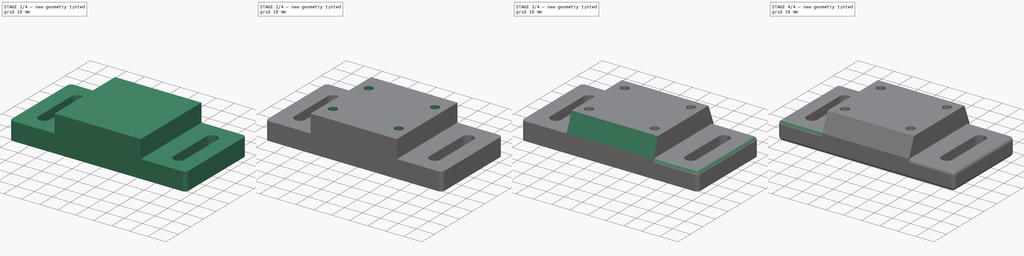
[diagram: build sequence overview — one tinted view per stage of 4, left to right]
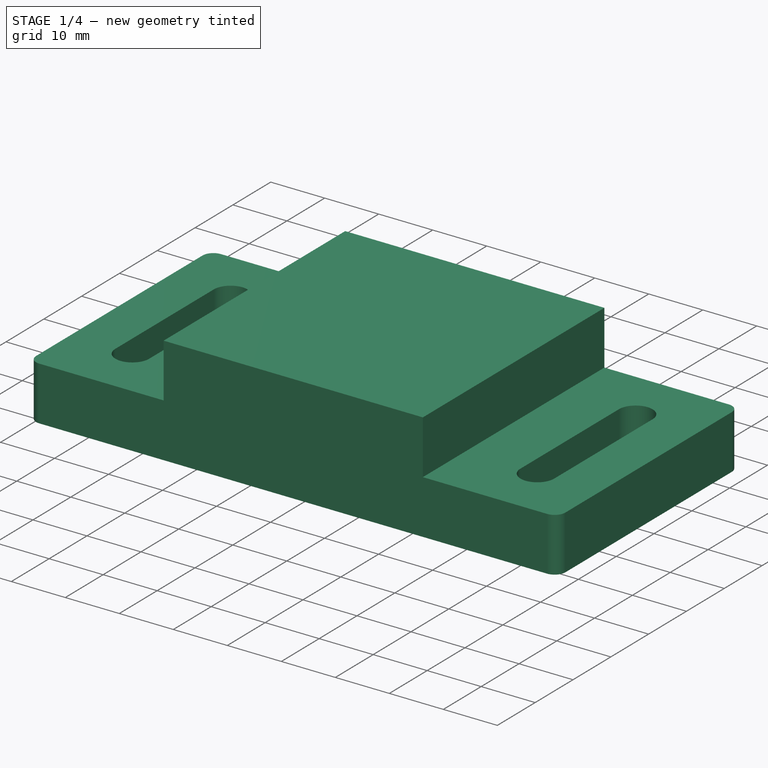
[diagram: stage 1 of 4 — iso view after this stage's code; geometry added in this stage tinted green]
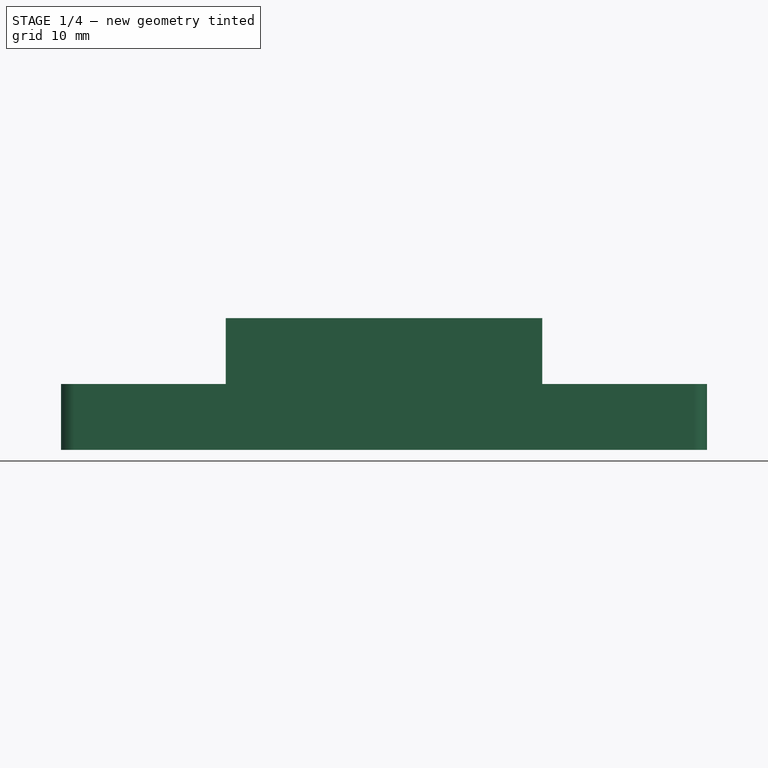
[diagram: stage 1 of 4 — front view after this stage's code; geometry added in this stage tinted green]
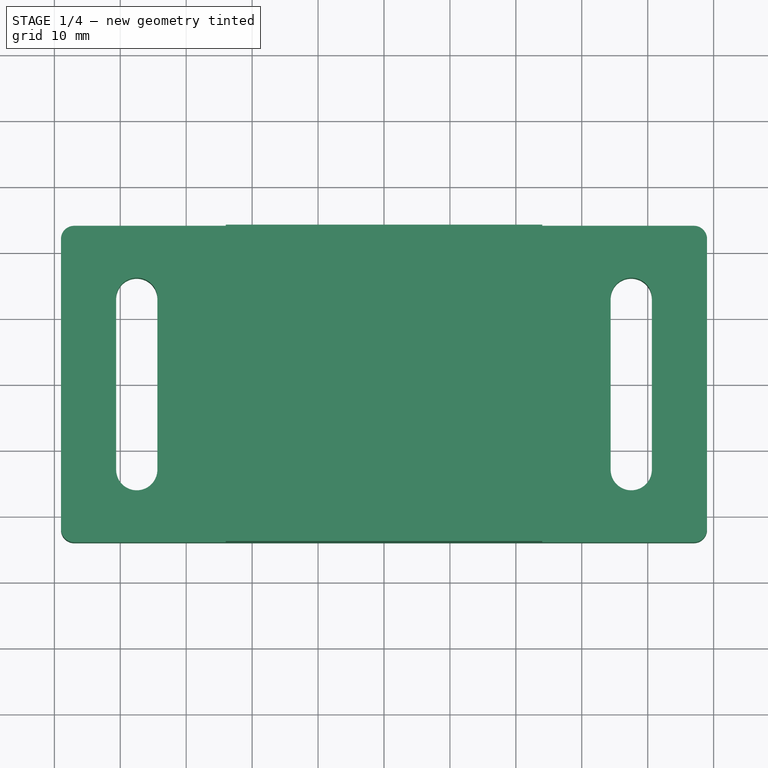
[diagram: stage 1 of 4 — top view after this stage's code; geometry added in this stage tinted green]
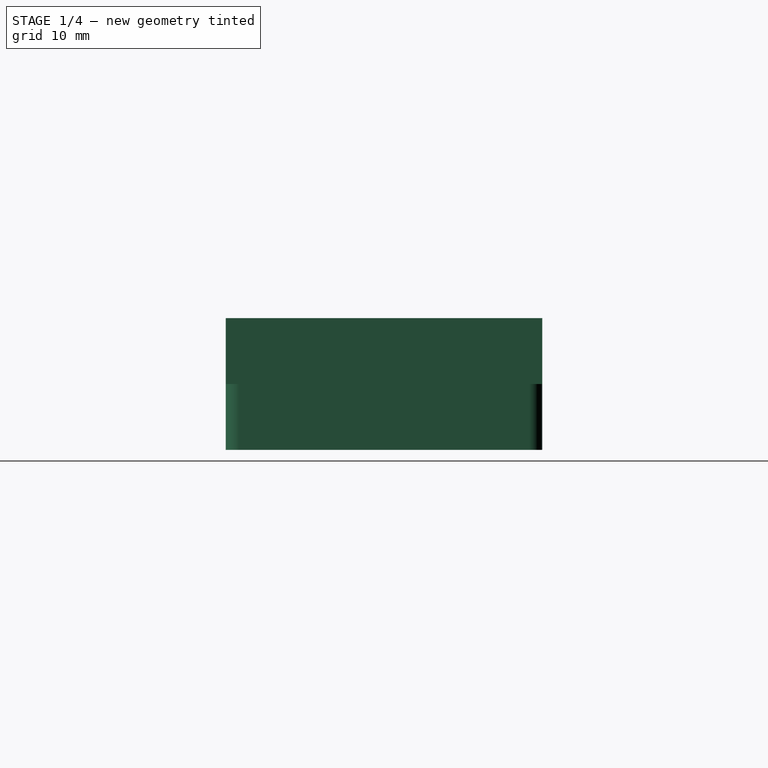
[diagram: stage 1 of 4 — right view after this stage's code; geometry added in this stage tinted green]
FCSTD DOCUMENT  (FreeCAD 0.20R29410 (Git))
Label: scannermount3
License: All rights reserved
LicenseURL: http://en.wikipedia.org/wiki/All_rights_reserved
objects: Sketcher::SketchObject×7, PartDesign::Pad×4, PartDesign::Fillet×3, PartDesign::Chamfer×2, Part::Part2DObjectPython×1, PartDesign::Hole×1, PartDesign::Body×1
note: 29 computed .brp shape members not serialized (recipe doc carries the construction recipe); baked Part::Feature solids carry a one-line shape summary decoded from their .brp

FEATURE [Sketcher::SketchObject] Sketch001  label="MasterSketch"
  FullyConstrained = true
  MapMode = 5
  Placement = pos=(0,0,0) rot=(1,0,0;3.14159rad)
  sketch-geometry (18):
    g0: Circle CenterX=-18.5 CenterY=14.085 CenterZ=0 NormalX=0 NormalY=0 NormalZ=1 AngleXU=0 Radius=1.75
    g1: Circle CenterX=18 CenterY=14.085 CenterZ=0 NormalX=0 NormalY=0 NormalZ=1 AngleXU=0 Radius=2.25
    g2: Circle CenterX=-18 CenterY=-13.585 CenterZ=0 NormalX=0 NormalY=0 NormalZ=1 AngleXU=0 Radius=2.25
    g3: Circle CenterX=18.5 CenterY=-14.085 CenterZ=0 NormalX=0 NormalY=0 NormalZ=1 AngleXU=0 Radius=1.75
    g4: LineSegment StartX=-22.5 StartY=18.085 StartZ=0 EndX=22.5 EndY=18.085 EndZ=0
    g5: LineSegment StartX=22.5 StartY=18.085 StartZ=0 EndX=22.5 EndY=-18.085 EndZ=0
    g6: LineSegment StartX=22.5 StartY=-18.085 StartZ=0 EndX=-22.5 EndY=-18.085 EndZ=0
    g7: LineSegment StartX=-22.5 StartY=-18.085 StartZ=0 EndX=-22.5 EndY=18.085 EndZ=0
    g8: LineSegment StartX=-49 StartY=24 StartZ=0 EndX=49 EndY=24 EndZ=0
    g9: LineSegment StartX=49 StartY=24 StartZ=0 EndX=49 EndY=-24 EndZ=0
    g10: LineSegment StartX=49 StartY=-24 StartZ=0 EndX=-49 EndY=-24 EndZ=0
    g11: LineSegment StartX=-49 StartY=-24 StartZ=0 EndX=-49 EndY=24 EndZ=0
    g12: LineSegment StartX=37.5 StartY=13 StartZ=0 EndX=37.5 EndY=-13 EndZ=0
    g13: LineSegment StartX=-37.5 StartY=13 StartZ=0 EndX=-37.5 EndY=-13 EndZ=0
    g14: LineSegment StartX=-24 StartY=24 StartZ=0 EndX=24 EndY=24 EndZ=0
    g15: LineSegment StartX=24 StartY=24 StartZ=0 EndX=24 EndY=-24 EndZ=0
    g16: LineSegment StartX=24 StartY=-24 StartZ=0 EndX=-24 EndY=-24 EndZ=0
    g17: LineSegment StartX=-24 StartY=-24 StartZ=0 EndX=-24 EndY=24 EndZ=0
  constraints (51):
    c: Diameter(g0) = 3.5
    c: Diameter(g1) = 4.5
    c: Diameter(g2) = 4.5
    c: Diameter(g3) = 3.5
    c: Coincident(g4,g5)
    c: Coincident(g5,g6)
    c: Coincident(g6,g7)
    c: Coincident(g7,g4)
    c: Horizontal(g4)
    c: Horizontal(g6)
    c: Vertical(g5)
    c: Vertical(g7)
    c: DistanceY(g7,g7) = 36.17
    c: DistanceX(g4,g4) = 45
    c: Symmetric(g4,g6,g-1)
    c: Distance(g2,g7) = 4.5
    c: Distance(g2,g6) = 4.5
    c: Distance(g0,g7) = 4
    c: Distance(g0,g4) = 4
    c: Distance(g3,g6) = 4
    c: Distance(g3,g5) = 4
    c: Distance(g1,g5) = 4.5
    c: Distance(g1,g4) = 4
    c: Coincident(g8,g9)
    c: Coincident(g9,g10)
    c: Coincident(g10,g11)
    c: Coincident(g11,g8)
    c: Horizontal(g8)
    c: Horizontal(g10)
    c: Vertical(g9)
    c: Vertical(g11)
    c: Distance(g10) = 98
    c: DistanceY(g9,g9) = 48
    c: Symmetric(g8,g10,g-1)
    c: Vertical(g13)
    c: DistanceY(g12,g12) = 26
    c: Symmetric(g12,g12,g-1)
    c: Equal(g12,g13)
    c: Symmetric(g13,g12,g-1)
    c: DistanceX(g13,g12) = 75
    c: Coincident(g14,g15)
    c: Coincident(g15,g16)
    c: Coincident(g16,g17)
    c: Coincident(g17,g14)
    c: Horizontal(g14)
    c: Horizontal(g16)
    c: Vertical(g15)
    c: Vertical(g17)
    c: Equal(g14,g15)
    c: Symmetric(g14,g16,g-1)
    c: Horizontal(g8,g14)
FEATURE [Part::Part2DObjectPython] Clone2D  label="MasterSketch (2D)"  # Draft 2D object (typed FeaturePython)
  Fuse = false
  Objects = -> [Sketch001]
  Placement = pos=(0,0,0) rot=(1,0,0;3.14159rad)
  Scale = (1,1,1)
FEATURE [Sketcher::SketchObject] Sketch
  ExternalGeometry = -> [Clone2D]
  FullyConstrained = true
  MapMode = 5
  Support = -> [XY_Plane]
  sketch-geometry (20):
    g0: LineSegment StartX=-47 StartY=24 StartZ=0 EndX=47 EndY=24 EndZ=0
    g1: LineSegment StartX=49 StartY=22 StartZ=0 EndX=49 EndY=-22 EndZ=0
    g2: LineSegment StartX=47 StartY=-24 StartZ=0 EndX=-47 EndY=-24 EndZ=0
    g3: LineSegment StartX=-49 StartY=-22 StartZ=0 EndX=-49 EndY=22 EndZ=0
    g4: ArcOfCircle CenterX=37.5 CenterY=13 CenterZ=0 NormalX=0 NormalY=0 NormalZ=1 AngleXU=0 Radius=3.125 StartAngle=4.26e-14 EndAngle=3.14159
    g5: ArcOfCircle CenterX=37.5 CenterY=-13 CenterZ=0 NormalX=0 NormalY=0 NormalZ=1 AngleXU=0 Radius=3.125 StartAngle=3.14159 EndAngle=6.28319
    g6: LineSegment StartX=34.375 StartY=13 StartZ=0 EndX=34.375 EndY=-13 EndZ=0
    g7: LineSegment StartX=40.625 StartY=-13 StartZ=0 EndX=40.625 EndY=13 EndZ=0
    g8: ArcOfCircle CenterX=-37.5 CenterY=13 CenterZ=0 NormalX=0 NormalY=0 NormalZ=1 AngleXU=0 Radius=3.125 StartAngle=3.7e-14 EndAngle=3.14159
    g9: ArcOfCircle CenterX=-37.5 CenterY=-13 CenterZ=0 NormalX=0 NormalY=0 NormalZ=1 AngleXU=0 Radius=3.125 StartAngle=3.14159 EndAngle=6.28319
    g10: LineSegment StartX=-40.625 StartY=13 StartZ=0 EndX=-40.625 EndY=-13 EndZ=0
    g11: LineSegment StartX=-34.375 StartY=-13 StartZ=0 EndX=-34.375 EndY=13 EndZ=0
    g12: ArcOfCircle CenterX=47 CenterY=22 CenterZ=0 NormalX=0 NormalY=0 NormalZ=1 AngleXU=0 Radius=2 StartAngle=1.5e-15 EndAngle=1.5708
    g13: GeomPoint X=49 Y=24 Z=0
    g14: ArcOfCircle CenterX=47 CenterY=-22 CenterZ=0 NormalX=0 NormalY=0 NormalZ=1 AngleXU=0 Radius=2 StartAngle=4.71239 EndAngle=6.28319
    g15: GeomPoint X=49 Y=-24 Z=0
    g16: ArcOfCircle CenterX=-47 CenterY=-22 CenterZ=0 NormalX=0 NormalY=0 NormalZ=1 AngleXU=0 Radius=2 StartAngle=3.14159 EndAngle=4.71239
    g17: GeomPoint X=-49 Y=-24 Z=0
    g18: ArcOfCircle CenterX=-47 CenterY=22 CenterZ=0 NormalX=0 NormalY=0 NormalZ=1 AngleXU=0 Radius=2 StartAngle=1.5708 EndAngle=3.14159
    g19: GeomPoint X=-49 Y=24 Z=0
  constraints (43):
    c: Horizontal(g0)
    c: Horizontal(g2)
    c: Vertical(g1)
    c: Vertical(g3)
    c: Symmetric(g19,g15,g-1)
    c: Tangent(g4,g6) = -1.5708
    c: Tangent(g6,g5) = -1.5708
    c: Tangent(g5,g7) = -1.5708
    c: Tangent(g7,g4) = -1.5708
    c: Equal(g4,g5)
    c: Vertical(g6)
    c: Tangent(g8,g10) = -1.5708
    c: Tangent(g10,g9) = -1.5708
    c: Tangent(g9,g11) = -1.5708
    c: Tangent(g11,g8) = -1.5708
    c: Equal(g8,g9)
    c: Diameter(g8) = 6.25
    c: Horizontal(g8,g4)
    c: Symmetric(g8,g9,g-1)
    c: Symmetric(g5,g9,g-2)
    c: Equal(g8,g4)
    c: Coincident(g8,g-6)
    c: Coincident(g19,g-4)
    c: PointOnObject(g13,g0)
    c: PointOnObject(g13,g1)
    c: Tangent(g0,g12) = 1.5708
    c: Tangent(g1,g12) = 1.5708
    c: PointOnObject(g15,g1)
    c: PointOnObject(g15,g2)
    c: Tangent(g1,g14) = 1.5708
    c: Tangent(g2,g14) = 1.5708
    c: PointOnObject(g17,g2)
    c: PointOnObject(g17,g3)
    c: Tangent(g2,g16) = 1.5708
    c: Tangent(g3,g16) = 1.5708
    c: PointOnObject(g19,g3)
    c: PointOnObject(g19,g0)
    c: Tangent(g3,g18) = 1.5708
    c: Tangent(g0,g18) = 1.5708
    c: Equal(g18,g12)
    c: Equal(g12,g14)
    c: Equal(g14,g16)
    c: Radius(g18) = 2
FEATURE [Sketcher::SketchObject] Sketch002
  ExternalGeometry = -> [Clone2D]
  FullyConstrained = true
  MapMode = 5
  Placement = pos=(0,0,10) rot=(0,0,1;0rad)
  sketch-geometry (4):
    g0: LineSegment StartX=-24 StartY=24 StartZ=0 EndX=24 EndY=24 EndZ=0
    g1: LineSegment StartX=24 StartY=24 StartZ=0 EndX=24 EndY=-24 EndZ=0
    g2: LineSegment StartX=24 StartY=-24 StartZ=0 EndX=-24 EndY=-24 EndZ=0
    g3: LineSegment StartX=-24 StartY=-24 StartZ=0 EndX=-24 EndY=24 EndZ=0
  constraints (10):
    c: Coincident(g0,g1)
    c: Coincident(g1,g2)
    c: Coincident(g2,g3)
    c: Coincident(g3,g0)
    c: Horizontal(g0)
    c: Horizontal(g2)
    c: Vertical(g1)
    c: Vertical(g3)
    c: Symmetric(g0,g2,g-1)
    c: Coincident(g0,g-5)
FEATURE [PartDesign::Pad] Pad  label="PlatePad"
  Direction = (0,0,1)
  Length = 10
  Length2 = 10
  Profile = -> Sketch
  ReferenceAxis = -> Sketch [N_Axis]
  Refine = true
  Type = 0
FEATURE [PartDesign::Pad] Pad001  label="RiserPad"
  BaseFeature = -> Pad
  Direction = (0,0,1)
  Length = 10
  Length2 = 10
  Profile = -> Sketch002
  ReferenceAxis = -> Sketch002 [N_Axis]
  Refine = true
  Type = 0
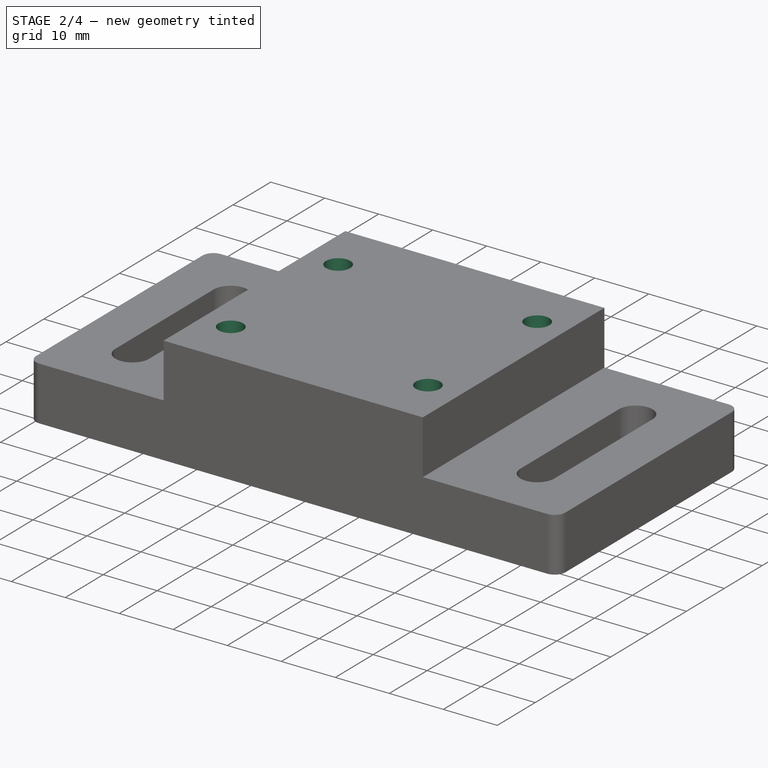
[diagram: stage 2 of 4 — iso view after this stage's code; geometry added in this stage tinted green]
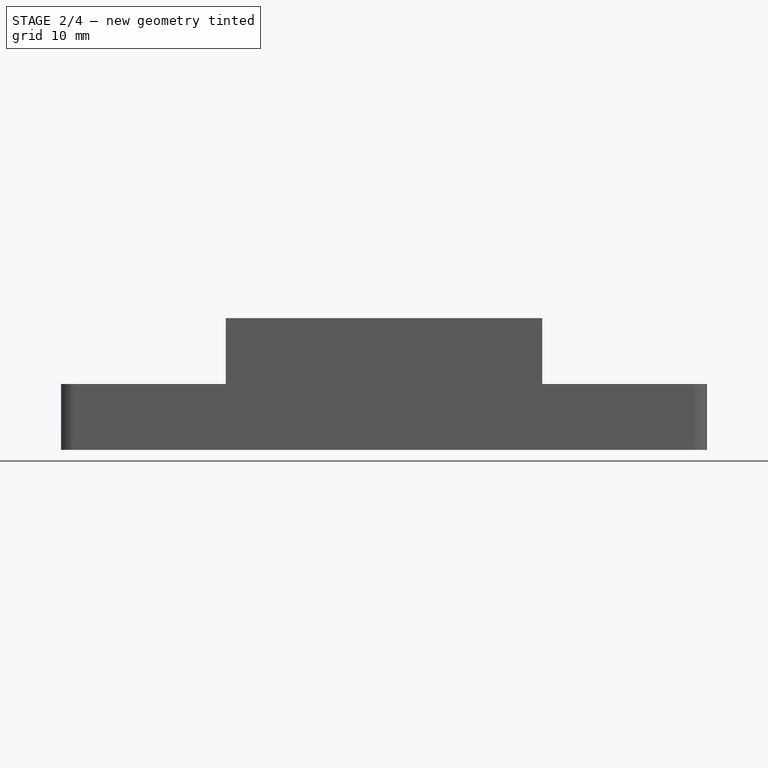
[diagram: stage 2 of 4 — front view after this stage's code; geometry added in this stage tinted green]
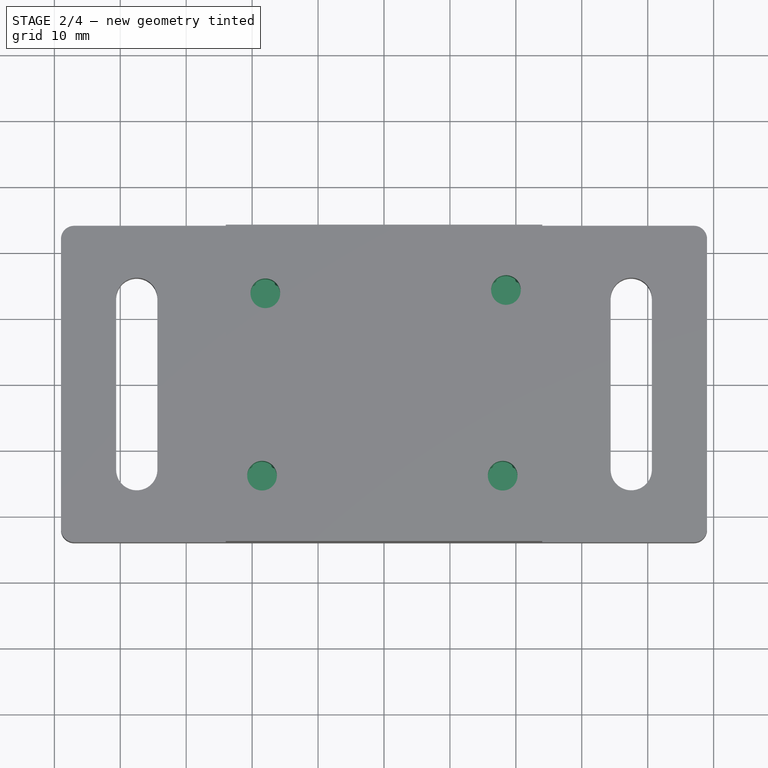
[diagram: stage 2 of 4 — top view after this stage's code; geometry added in this stage tinted green]
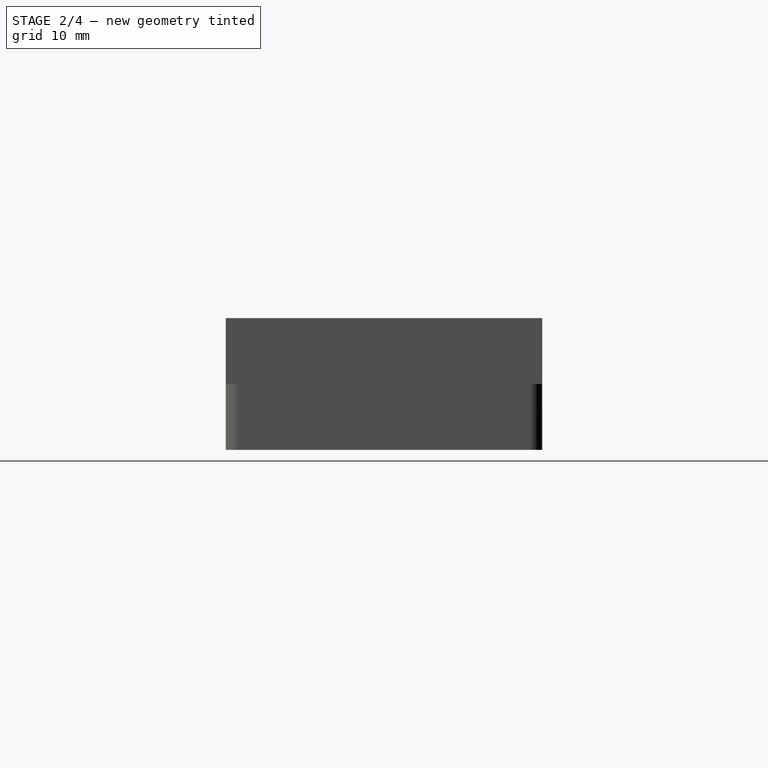
[diagram: stage 2 of 4 — right view after this stage's code; geometry added in this stage tinted green]
FEATURE [Sketcher::SketchObject] Sketch003  label="GalvoSketch"
  AttachmentOffset = pos=(0,0,20) rot=(0,0,1;0rad)
  ExternalGeometry = -> [Clone2D]
  FullyConstrained = true
  MapMode = 5
  Placement = pos=(0,0,20) rot=(0,0,1;0rad)
  Support = -> [XY_Plane]
  sketch-geometry (4):
    g0: LineSegment StartX=-22.5 StartY=18.085 StartZ=0 EndX=22.5 EndY=18.085 EndZ=0
    g1: LineSegment StartX=22.5 StartY=18.085 StartZ=0 EndX=22.5 EndY=-18.085 EndZ=0
    g2: LineSegment StartX=22.5 StartY=-18.085 StartZ=0 EndX=-22.5 EndY=-18.085 EndZ=0
    g3: LineSegment StartX=-22.5 StartY=-18.085 StartZ=0 EndX=-22.5 EndY=18.085 EndZ=0
  constraints (10):
    c: Coincident(g0,g1)
    c: Coincident(g1,g2)
    c: Coincident(g2,g3)
    c: Coincident(g3,g0)
    c: Horizontal(g0)
    c: Horizontal(g2)
    c: Vertical(g1)
    c: Vertical(g3)
    c: Symmetric(g0,g1,g-1)
    c: Coincident(g0,g-5)
FEATURE [Sketcher::SketchObject] Sketch004
  ExternalGeometry = -> [Clone2D]
  FullyConstrained = true
  MapMode = 5
  Placement = pos=(0,0,0) rot=(0,1,0;3.14159rad)
  Support = -> [XY_Plane]
  sketch-geometry (4):
    g0: Circle CenterX=-18.5 CenterY=14.085 CenterZ=0 NormalX=0 NormalY=0 NormalZ=1 AngleXU=0 Radius=2
    g1: Circle CenterX=18 CenterY=13.585 CenterZ=0 NormalX=0 NormalY=0 NormalZ=1 AngleXU=0 Radius=2
    g2: Circle CenterX=-18 CenterY=-14.085 CenterZ=0 NormalX=0 NormalY=0 NormalZ=1 AngleXU=0 Radius=2
    g3: Circle CenterX=18.5 CenterY=-14.085 CenterZ=0 NormalX=0 NormalY=0 NormalZ=1 AngleXU=0 Radius=2
  constraints (8):
    c: Coincident(g0,g-3)
    c: Coincident(g1,g-4)
    c: Coincident(g2,g-6)
    c: Coincident(g3,g-5)
    c: Diameter(g1) = 4
    c: Equal(g1,g0)
    c: Equal(g0,g2)
    c: Equal(g2,g3)
FEATURE [PartDesign::Hole] Hole
  BaseFeature = -> Pad001
  CustomThreadClearance = 0
  Depth = 224.102
  DepthType = 1
  Diameter = 4.5
  DrillForDepth = false
  DrillPoint = 1
  DrillPointAngle = 118
  HoleCutCountersinkAngle = 90
  HoleCutCustomValues = false
  HoleCutDepth = 12
  HoleCutDiameter = 7.5
  HoleCutType = 1
  ModelThread = false
  Profile = -> Sketch004
  Refine = true
  Tapered = false
  TaperedAngle = 90
  ThreadClass = 0
  ThreadDepth = 224.102
  ThreadDepthType = 0
  ThreadDirection = 0
  ThreadFit = 0
  ThreadSize = 11
  ThreadType = 1
  Threaded = false
  UseCustomThreadClearance = false
FEATURE [Sketcher::SketchObject] Sketch005
  ExternalGeometry = -> [Clone2D]
  FullyConstrained = true
  MapMode = 5
  Support = -> [XY_Plane]
  sketch-geometry (36):
    g0: LineSegment StartX=-19.92 StartY=15.505 StartZ=0 EndX=-19.92 EndY=11.665 EndZ=0
    g1: LineSegment StartX=-19.92 StartY=11.665 StartZ=0 EndX=-16.08 EndY=11.665 EndZ=0
    g2: LineSegment StartX=-16.08 StartY=11.665 StartZ=0 EndX=-16.08 EndY=15.505 EndZ=0
    g3: LineSegment StartX=-16.08 StartY=15.505 StartZ=0 EndX=-19.92 EndY=15.505 EndZ=0
    g4: GeomPoint X=-18 Y=13.585 Z=0
    g5: LineSegment StartX=20.42 StartY=16.005 StartZ=0 EndX=20.42 EndY=12.165 EndZ=0
    g6: LineSegment StartX=20.42 StartY=12.165 StartZ=0 EndX=16.58 EndY=12.165 EndZ=0
    g7: LineSegment StartX=16.58 StartY=12.165 StartZ=0 EndX=16.58 EndY=16.005 EndZ=0
    g8: LineSegment StartX=16.58 StartY=16.005 StartZ=0 EndX=20.42 EndY=16.005 EndZ=0
    g9: GeomPoint X=18.5 Y=14.085 Z=0
    g10: LineSegment StartX=-20.42 StartY=-12.165 StartZ=0 EndX=-20.42 EndY=-16.005 EndZ=0
    g11: LineSegment StartX=-20.42 StartY=-16.005 StartZ=0 EndX=-16.58 EndY=-16.005 EndZ=0
    g12: LineSegment StartX=-16.58 StartY=-16.005 StartZ=0 EndX=-16.58 EndY=-12.165 EndZ=0
    g13: LineSegment StartX=-16.58 StartY=-12.165 StartZ=0 EndX=-20.42 EndY=-12.165 EndZ=0
    g14: GeomPoint X=-18.5 Y=-14.085 Z=0
    g15: LineSegment StartX=19.92 StartY=-12.165 StartZ=0 EndX=19.92 EndY=-16.005 EndZ=0
    g16: LineSegment StartX=19.92 StartY=-16.005 StartZ=0 EndX=16.08 EndY=-16.005 EndZ=0
    g17: LineSegment StartX=16.08 StartY=-16.005 StartZ=0 EndX=16.08 EndY=-12.165 EndZ=0
    g18: LineSegment StartX=16.08 StartY=-12.165 StartZ=0 EndX=19.92 EndY=-12.165 EndZ=0
    g19: GeomPoint X=18 Y=-14.085 Z=0
    g20: Circle CenterX=-19.92 CenterY=15.505 CenterZ=0 NormalX=0 NormalY=0 NormalZ=1 AngleXU=0 Radius=0.5
    g21: Circle CenterX=-16.08 CenterY=15.505 CenterZ=0 NormalX=0 NormalY=0 NormalZ=1 AngleXU=0 Radius=0.5
    g22: Circle CenterX=-19.92 CenterY=11.665 CenterZ=0 NormalX=0 NormalY=0 NormalZ=1 AngleXU=0 Radius=0.5
    g23: Circle CenterX=-16.08 CenterY=11.665 CenterZ=0 NormalX=0 NormalY=0 NormalZ=1 AngleXU=0 Radius=0.5
    g24: Circle CenterX=16.58 CenterY=16.005 CenterZ=0 NormalX=0 NormalY=0 NormalZ=1 AngleXU=0 Radius=0.5
    g25: Circle CenterX=20.42 CenterY=16.005 CenterZ=0 NormalX=0 NormalY=0 NormalZ=1 AngleXU=0 Radius=0.5
    g26: Circle CenterX=16.58 CenterY=12.165 CenterZ=0 NormalX=0 NormalY=0 NormalZ=1 AngleXU=0 Radius=0.5
    g27: Circle CenterX=20.42 CenterY=12.165 CenterZ=0 NormalX=0 NormalY=0 NormalZ=1 AngleXU=0 Radius=0.5
    g28: Circle CenterX=-20.42 CenterY=-12.165 CenterZ=0 NormalX=0 NormalY=0 NormalZ=1 AngleXU=0 Radius=0.5
    g29: Circle CenterX=-16.58 CenterY=-12.165 CenterZ=0 NormalX=0 NormalY=0 NormalZ=1 AngleXU=0 Radius=0.5
    g30: Circle CenterX=-20.42 CenterY=-16.005 CenterZ=0 NormalX=0 NormalY=0 NormalZ=1 AngleXU=0 Radius=0.5
    g31: Circle CenterX=-16.58 CenterY=-16.005 CenterZ=0 NormalX=0 NormalY=0 NormalZ=1 AngleXU=0 Radius=0.5
    g32: Circle CenterX=16.08 CenterY=-12.165 CenterZ=0 NormalX=0 NormalY=0 NormalZ=1 AngleXU=0 Radius=0.5
    g33: Circle CenterX=19.92 CenterY=-12.165 CenterZ=0 NormalX=0 NormalY=0 NormalZ=1 AngleXU=0 Radius=0.5
    g34: Circle CenterX=16.08 CenterY=-16.005 CenterZ=0 NormalX=0 NormalY=0 NormalZ=1 AngleXU=0 Radius=0.5
    g35: Circle CenterX=19.92 CenterY=-16.005 CenterZ=0 NormalX=0 NormalY=0 NormalZ=1 AngleXU=0 Radius=0.5
  constraints (80):
    c: Coincident(g0,g1)
    c: Coincident(g1,g2)
    c: Coincident(g2,g3)
    c: Coincident(g3,g0)
    c: Horizontal(g1)
    c: Horizontal(g3)
    c: Vertical(g0)
    c: Vertical(g2)
    c: Symmetric(g1,g0,g4)
    c: Coincident(g4,g-3)
    c: Coincident(g5,g6)
    c: Coincident(g6,g7)
    c: Coincident(g7,g8)
    c: Coincident(g8,g5)
    c: Horizontal(g6)
    c: Horizontal(g8)
    c: Vertical(g5)
    c: Vertical(g7)
    c: Symmetric(g6,g5,g9)
    c: Coincident(g9,g-4)
    c: Coincident(g10,g11)
    c: Coincident(g11,g12)
    c: Coincident(g12,g13)
    c: Coincident(g13,g10)
    c: Horizontal(g11)
    c: Horizontal(g13)
    c: Vertical(g10)
    c: Vertical(g12)
    c: Symmetric(g11,g10,g14)
    c: Coincident(g14,g-5)
    c: Coincident(g15,g16)
    c: Coincident(g16,g17)
    c: Coincident(g17,g18)
    c: Coincident(g18,g15)
    c: Horizontal(g16)
    c: Horizontal(g18)
    c: Vertical(g15)
    c: Vertical(g17)
    c: Symmetric(g16,g15,g19)
    c: Coincident(g19,g-6)
    c: Equal(g2,g3)
    c: Equal(g3,g8)
    c: Equal(g8,g13)
    c: Equal(g13,g18)
    c: Equal(g2,g5)
    c: Equal(g5,g15)
    c: Equal(g15,g12)
    c: Coincident(g20,g0)
    c: Coincident(g21,g2)
    c: Coincident(g22,g0)
    c: Coincident(g23,g1)
    c: Coincident(g24,g7)
    c: Coincident(g25,g5)
    c: Coincident(g26,g6)
    c: Coincident(g27,g5)
    c: Coincident(g28,g10)
    c: Coincident(g29,g12)
    c: Coincident(g30,g10)
    c: Coincident(g31,g11)
    c: Coincident(g32,g17)
    c: Coincident(g33,g15)
    c: Coincident(g34,g16)
    c: Coincident(g35,g15)
    c: Equal(g20,g21)
    c: Equal(g21,g22)
    c: Equal(g22,g23)
    c: Equal(g23,g24)
    c: Equal(g24,g25)
    c: Equal(g25,g26)
    c: Equal(g26,g27)
    c: Equal(g27,g28)
    c: Equal(g28,g29)
    c: Equal(g29,g30)
    c: Equal(g30,g31)
    c: Equal(g31,g32)
    c: Equal(g32,g33)
    c: Equal(g33,g35)
    c: Equal(g35,g34)
    c: Diameter(g23) = 1
    c: DistanceX(g3,g3) = 3.84
FEATURE [PartDesign::Pad] Pad002  label="CBoreSupportPad"
  BaseFeature = -> Hole
  Direction = (0,0,1)
  Length = 12
  Length2 = 10
  Profile = -> Sketch005
  ReferenceAxis = -> Sketch005 [N_Axis]
  Refine = true
  Type = 0
FEATURE [Sketcher::SketchObject] Sketch006
  ExternalGeometry = -> [Clone2D]
  FullyConstrained = true
  MapMode = 5
  Support = -> [XY_Plane]
  sketch-geometry (4):
    g0: Circle CenterX=-18 CenterY=13.585 CenterZ=0 NormalX=0 NormalY=0 NormalZ=1 AngleXU=0 Radius=2.715
    g1: Circle CenterX=18.5 CenterY=14.085 CenterZ=0 NormalX=0 NormalY=0 NormalZ=1 AngleXU=0 Radius=2.715
    g2: Circle CenterX=-18.5 CenterY=-14.085 CenterZ=0 NormalX=0 NormalY=0 NormalZ=1 AngleXU=0 Radius=2.715
    g3: Circle CenterX=18 CenterY=-14.085 CenterZ=0 NormalX=0 NormalY=0 NormalZ=1 AngleXU=0 Radius=2.715
  constraints (8):
    c: Coincident(g0,g-3)
    c: Coincident(g1,g-4)
    c: Coincident(g2,g-5)
    c: Coincident(g3,g-6)
    c: Equal(g0,g1)
    c: Equal(g1,g2)
    c: Equal(g2,g3)
    c: Diameter(g0) = 5.43
FEATURE [PartDesign::Pad] Pad003
  BaseFeature = -> Pad002
  Direction = (0,0,1)
  Length = 1
  Length2 = 10
  Profile = -> Sketch006
  ReferenceAxis = -> Sketch006 [N_Axis]
  Refine = true
  Type = 0
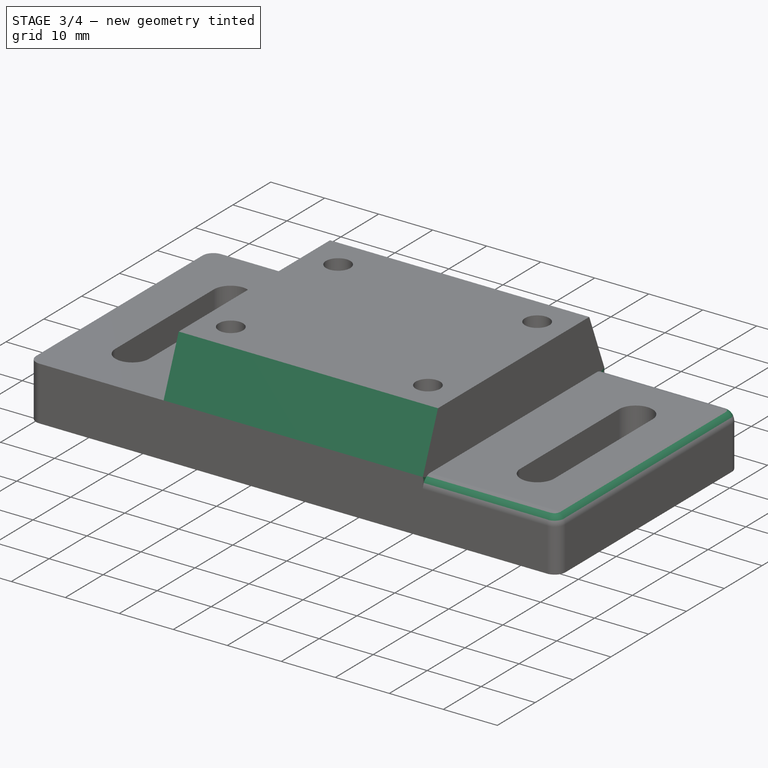
[diagram: stage 3 of 4 — iso view after this stage's code; geometry added in this stage tinted green]
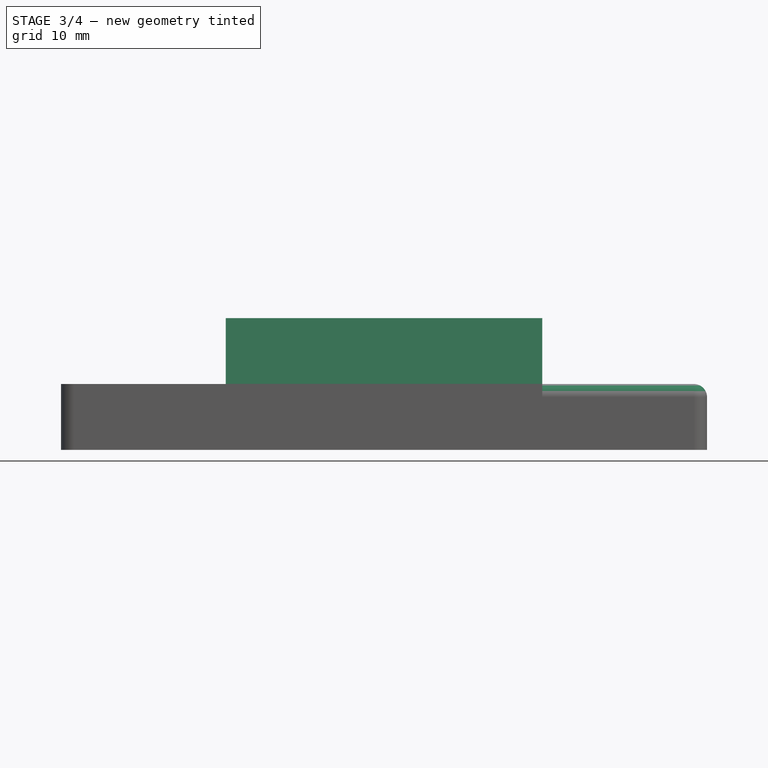
[diagram: stage 3 of 4 — front view after this stage's code; geometry added in this stage tinted green]
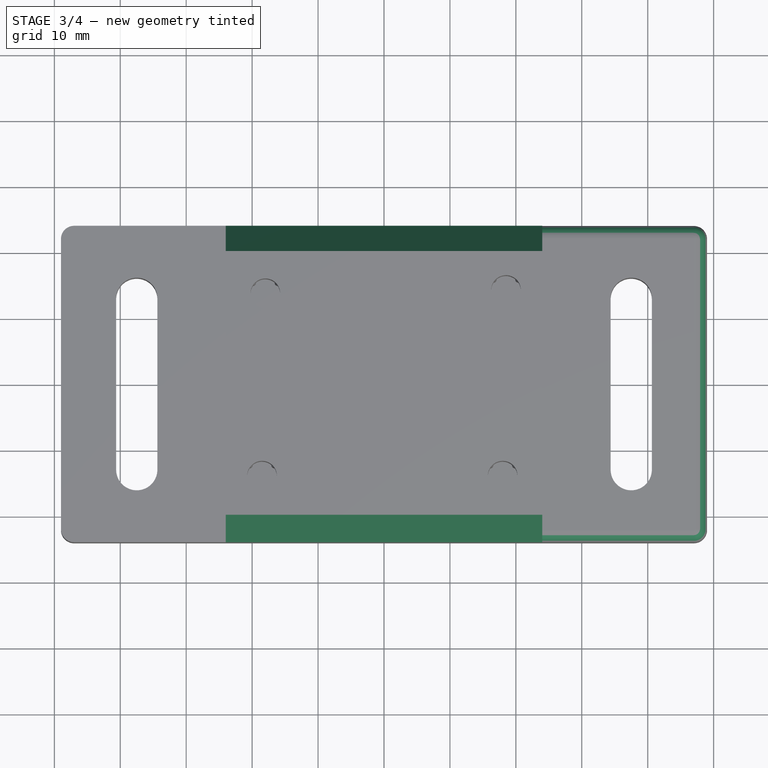
[diagram: stage 3 of 4 — top view after this stage's code; geometry added in this stage tinted green]
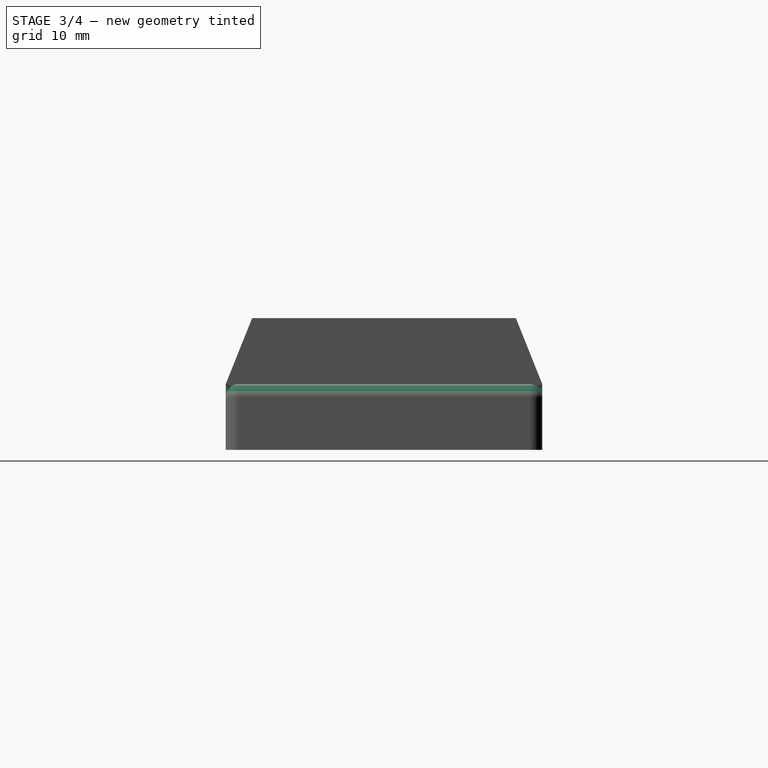
[diagram: stage 3 of 4 — right view after this stage's code; geometry added in this stage tinted green]
FEATURE [PartDesign::Chamfer] Chamfer
  Angle = 45
  Base = -> Pad003 [Edge53]
  BaseFeature = -> Pad003
  ChamferType = 1
  FlipDirection = false
  Refine = true
  Size = 4
  Size2 = 9.99
  SupportTransform = false
  UseAllEdges = false
FEATURE [PartDesign::Chamfer] Chamfer001
  Angle = 45
  Base = -> Chamfer [Edge23]
  BaseFeature = -> Chamfer
  ChamferType = 1
  FlipDirection = false
  Refine = true
  Size = 4
  Size2 = 9.99
  SupportTransform = false
  UseAllEdges = false
FEATURE [PartDesign::Fillet] Fillet
  Base = -> Chamfer001 [Edge25]
  BaseFeature = -> Chamfer001
  Radius = 2
  Refine = true
  SupportTransform = false
  UseAllEdges = false
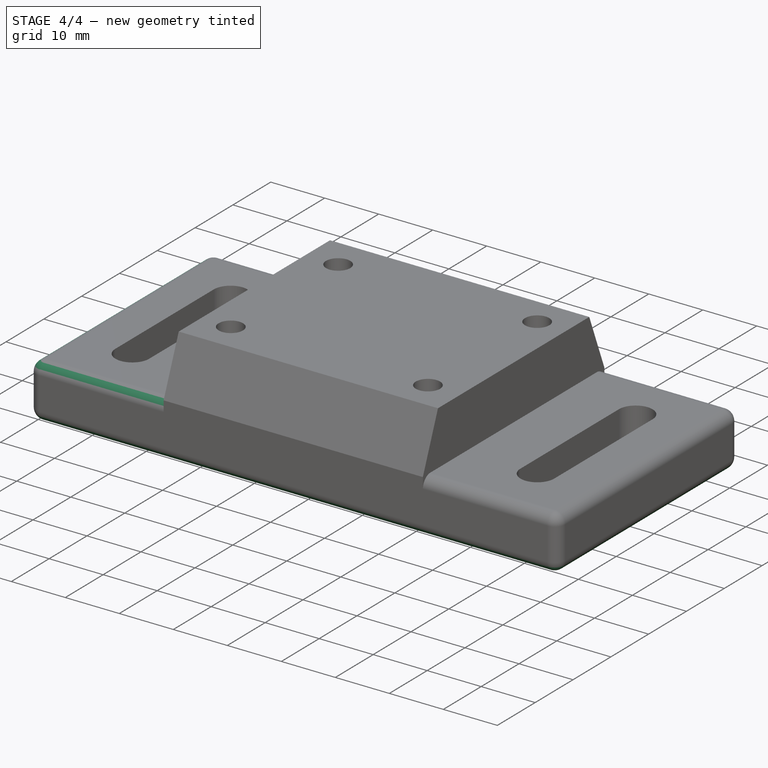
[diagram: stage 4 of 4 — iso view after this stage's code; geometry added in this stage tinted green]
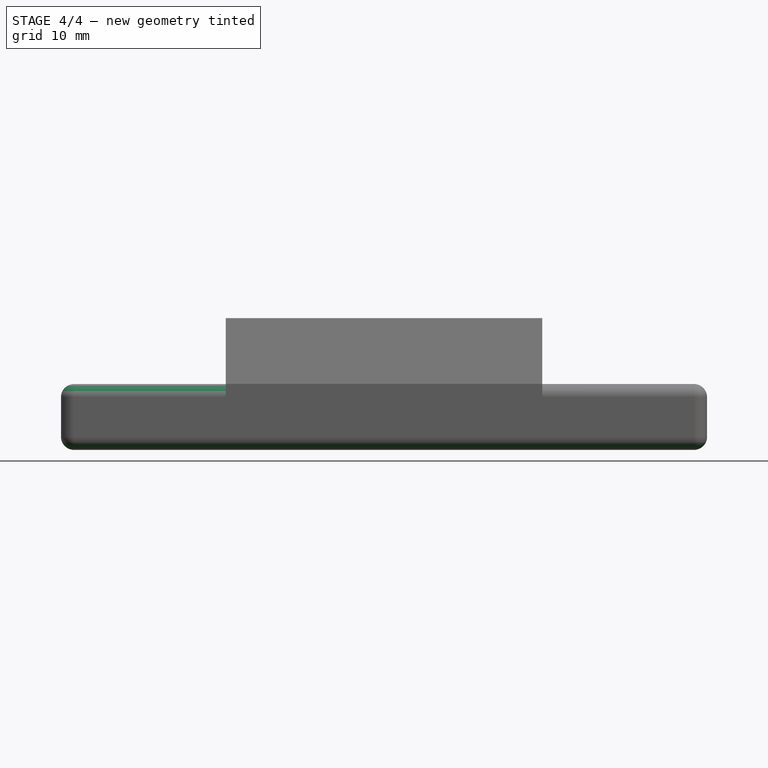
[diagram: stage 4 of 4 — front view after this stage's code; geometry added in this stage tinted green]
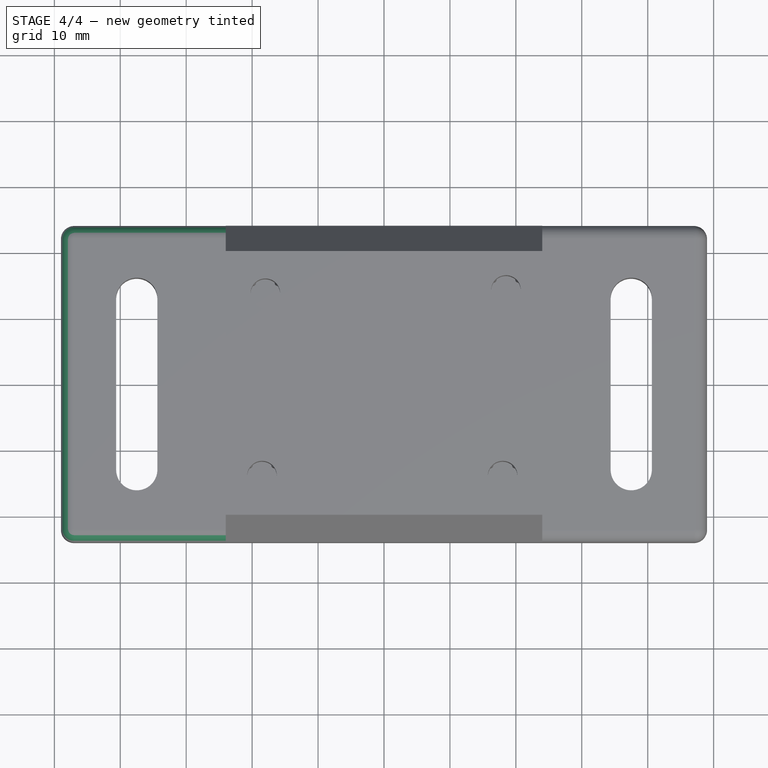
[diagram: stage 4 of 4 — top view after this stage's code; geometry added in this stage tinted green]
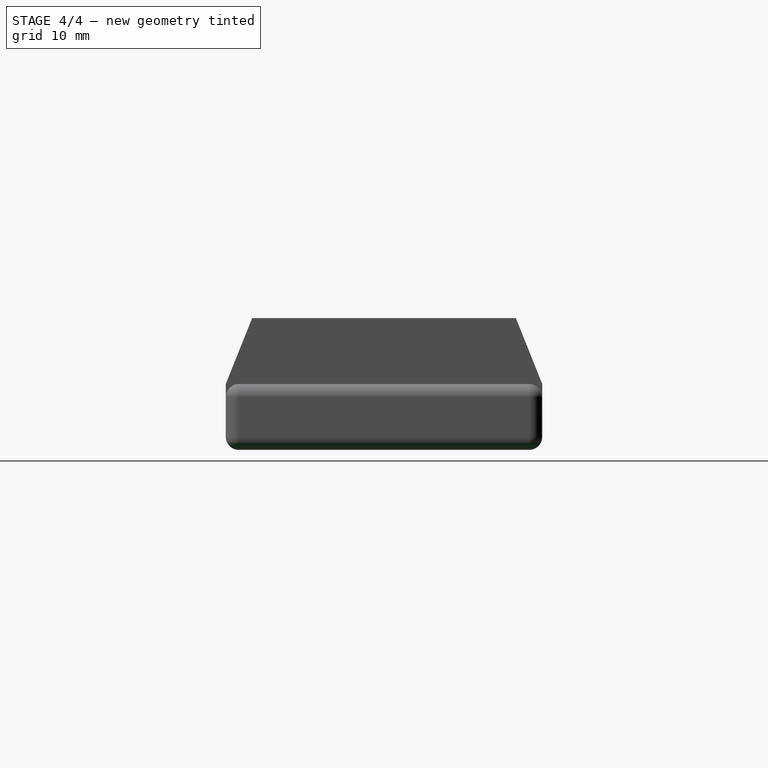
[diagram: stage 4 of 4 — right view after this stage's code; geometry added in this stage tinted green]
FEATURE [PartDesign::Fillet] Fillet001
  Base = -> Fillet [Edge44]
  BaseFeature = -> Fillet
  Radius = 2
  Refine = true
  SupportTransform = false
  UseAllEdges = false
FEATURE [PartDesign::Fillet] Fillet002
  Base = -> Fillet001 [Edge22]
  BaseFeature = -> Fillet001
  Radius = 2
  Refine = true
  SupportTransform = false
  UseAllEdges = false
FEATURE [PartDesign::Body] Body
  Group = -> [Sketch,Sketch001,Sketch002,Clone2D,Pad,Pad001,Sketch003,Sketch004,Hole,Sketch005,Pad002,Sketch006,Pad003,Chamfer,Chamfer001,Fillet,Fillet001,Fillet002]
  Origin = -> Origin
  Tip = -> Fillet002
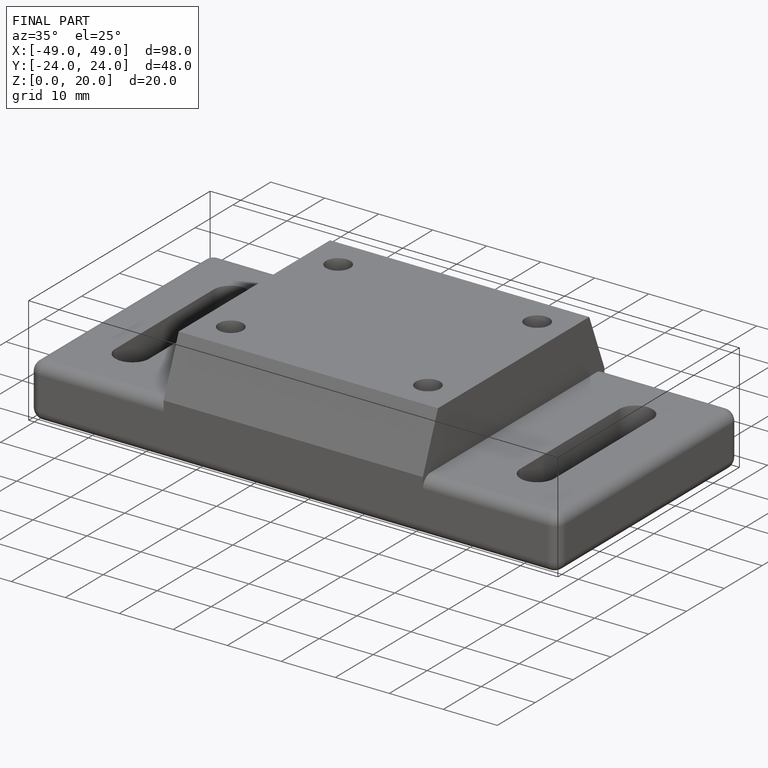
[diagram: finished part — iso view with bounding-box wireframe]
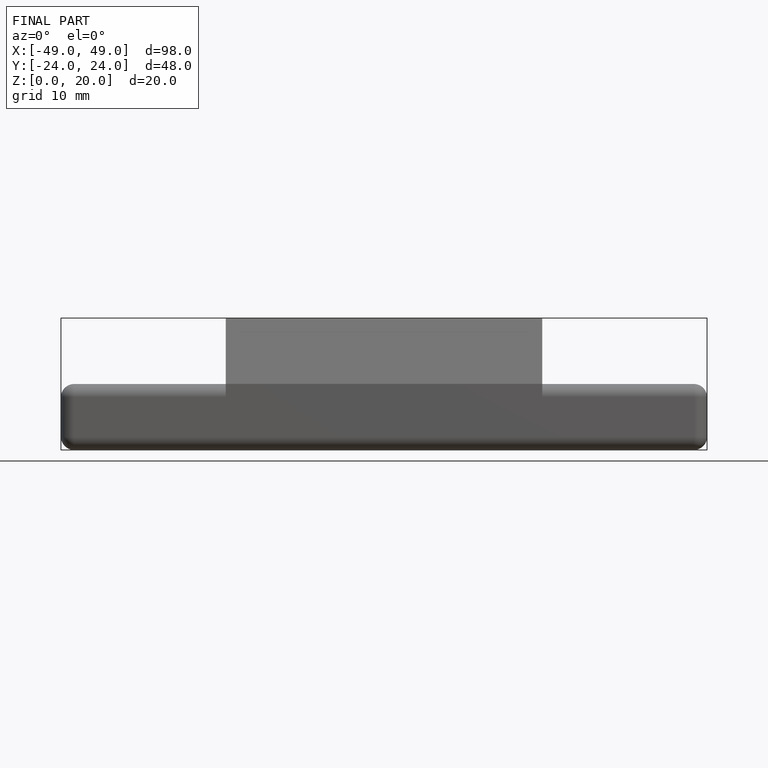
[diagram: finished part — front view with bounding-box wireframe]
